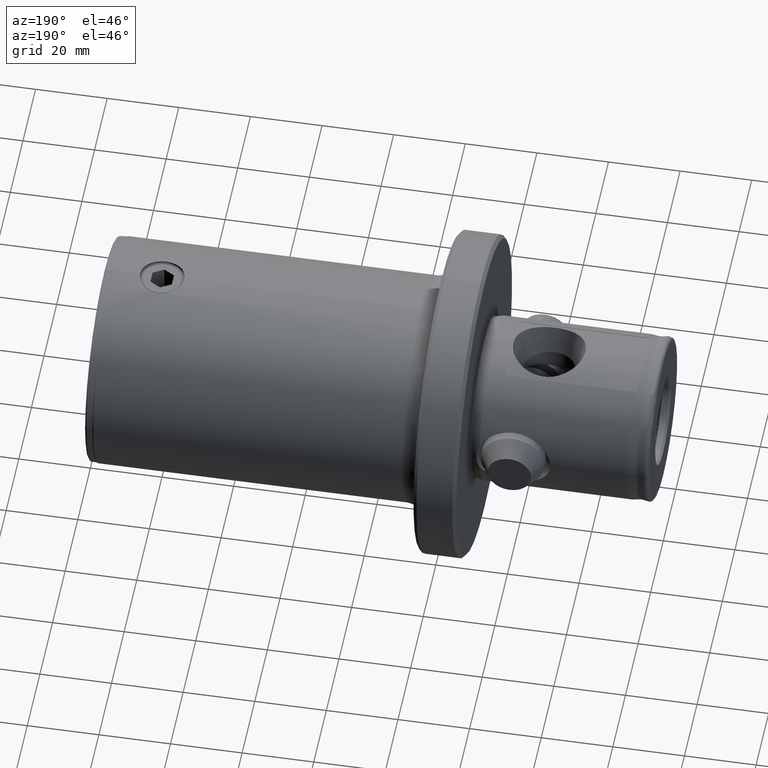
[diagram: clean part render]
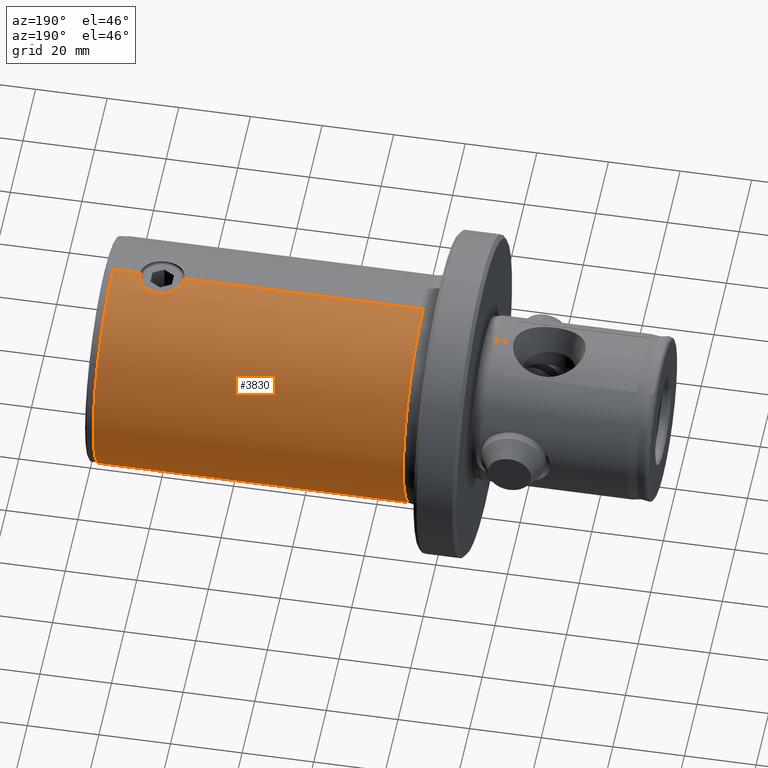
[diagram: same view with one face highlighted and labeled with its STEP entity id]
A machine part, auxiliary view. The second image highlights one B-rep face of the part: STEP entity #3830.
In plain terms, the highlighted cylindrical surface (partial cylindrical patch) has radius 31.635 mm, axis along (-1, -0, -0).
Its self-contained STEP definition (entity closure, byte-faithful):
#218 = CARTESIAN_POINT ( 'NONE',  ( 133.8389918804065500, 0.8018374299556667600, 31.62734728538004000 ) ) ;
#238 = CARTESIAN_POINT ( 'NONE',  ( 136.1976645814242500, 4.889058703006088400, 31.25573948646080100 ) ) ;
#249 = CARTESIAN_POINT ( 'NONE',  ( 142.6759038382167300, 5.527538662820200300, 31.14874049685562000 ) ) ;
#265 = DIRECTION ( 'NONE',  ( -1.000000000000000000, -0.0000000000000000000, -0.0000000000000000000 ) ) ;
#266 = CARTESIAN_POINT ( 'NONE',  ( 145.9408500149867800, 1.404697746439164800, 31.60442200919962000 ) ) ;
#271 = EDGE_CURVE ( 'NONE', #808, #4845, #1391, .T. ) ;
#514 = CARTESIAN_POINT ( 'NONE',  ( 155.9999999999999700, 0.0000000000000000000, 0.0000000000000000000 ) ) ;
#646 = CARTESIAN_POINT ( 'NONE',  ( 133.7999999999999800, 6.997006902693121700E-022, 31.63500000000000500 ) ) ;
#666 = CARTESIAN_POINT ( 'NONE',  ( 137.2160897759515900, 5.523712437825160700, 31.14942491159985100 ) ) ;
#683 = CARTESIAN_POINT ( 'NONE',  ( 143.5310414198409900, 5.003910732990695100, 31.23694782436792400 ) ) ;
#706 = CARTESIAN_POINT ( 'NONE',  ( 146.0999999999999700, 0.4072845302803347300, 31.63500000000000500 ) ) ;
#730 = CARTESIAN_POINT ( 'NONE',  ( 155.9999999999999700, 3.874170149102652900E-015, -31.63500000000000500 ) ) ;
#808 = VERTEX_POINT ( 'NONE', #1877 ) ;
#942 = DIRECTION ( 'NONE',  ( -1.000000000000000000, -0.0000000000000000000, -0.0000000000000000000 ) ) ;
#1044 = DIRECTION ( 'NONE',  ( 1.000000000000000000, 0.0000000000000000000, 0.0000000000000000000 ) ) ;
#1077 = CARTESIAN_POINT ( 'NONE',  ( 133.9974528427898700, 1.598294667138944900, 31.59711211062030900 ) ) ;
#1094 = AXIS2_PLACEMENT_3D ( 'NONE', #514, #942, #3045 ) ;
#1097 = CARTESIAN_POINT ( 'NONE',  ( 137.9675155725618900, 5.825193004398435000, 31.09411382168062900 ) ) ;
#1105 = CARTESIAN_POINT ( 'NONE',  ( 155.9999999999999700, 0.0000000000000000000, 31.63500000000000500 ) ) ;
#1114 = CARTESIAN_POINT ( 'NONE',  ( 144.0059705082675000, 4.627328162551321200, 31.29501158685445000 ) ) ;
#1331 = CARTESIAN_POINT ( 'NONE',  ( 66.99999999999998600, 0.0000000000000000000, 31.63500000000000500 ) ) ;
#1391 = CIRCLE ( 'NONE', #2025, 31.63500000000000500 ) ;
#1490 = CARTESIAN_POINT ( 'NONE',  ( 134.3454550415325200, 2.540023165402107700, 31.53341012735332800 ) ) ;
#1503 = CARTESIAN_POINT ( 'NONE',  ( 138.5478795857289400, 5.991390651068496000, 31.06248647552820700 ) ) ;
#1518 = CARTESIAN_POINT ( 'NONE',  ( 144.5787315534489900, 4.069047553508192500, 31.37351453063046900 ) ) ;
#1604 = CARTESIAN_POINT ( 'NONE',  ( 153.6343145750507200, 3.874170149102652900E-015, -31.63500000000000500 ) ) ;
#1816 = VERTEX_POINT ( 'NONE', #2936 ) ;
#1877 = CARTESIAN_POINT ( 'NONE',  ( 153.6343145750507200, 0.0000000000000000000, 31.63500000000000500 ) ) ;
#1928 = CARTESIAN_POINT ( 'NONE',  ( 134.6211916618714200, 3.076832738462256700, 31.48552316506233200 ) ) ;
#1943 = VERTEX_POINT ( 'NONE', #1331 ) ;
#1945 = CARTESIAN_POINT ( 'NONE',  ( 139.5407164932942700, 6.149788037869393000, 31.03148936379957200 ) ) ;
#1969 = CARTESIAN_POINT ( 'NONE',  ( 145.2850319074471500, 3.086160683484418900, 31.48592840713794400 ) ) ;
#2025 = AXIS2_PLACEMENT_3D ( 'NONE', #2810, #265, #3233 ) ;
#2045 = LINE ( 'NONE', #3280, #4022 ) ;
#2221 = ORIENTED_EDGE ( 'NONE', *, *, #3452, .T. ) ;
#2368 = CARTESIAN_POINT ( 'NONE',  ( 135.0617942562778900, 3.753686359106928300, 31.41331680595153800 ) ) ;
#2386 = CARTESIAN_POINT ( 'NONE',  ( 140.7528268151501400, 6.110590535687909300, 31.03933390662002300 ) ) ;
#2398 = CARTESIAN_POINT ( 'NONE',  ( 145.7049294718525200, 2.177931838018481800, 31.56048495932363500 ) ) ;
#2503 = EDGE_LOOP ( 'NONE', ( #4842, #5379, #2221, #3259, #3156, #5359 ) ) ;
#2776 = CARTESIAN_POINT ( 'NONE',  ( 135.8820532660823500, 4.629791676343304900, 31.29569019110654800 ) ) ;
#2791 = CARTESIAN_POINT ( 'NONE',  ( 141.9328501114427500, 5.835455495480037100, 31.09252606929352300 ) ) ;
#2810 = CARTESIAN_POINT ( 'NONE',  ( 153.6343145750507200, 0.0000000000000000000, 0.0000000000000000000 ) ) ;
#2811 = CARTESIAN_POINT ( 'NONE',  ( 145.8909337116278900, 1.602682063358000600, 31.59496892742645000 ) ) ;
#2830 = EDGE_CURVE ( 'NONE', #808, #4157, #2045, .T. ) ;
#2936 = CARTESIAN_POINT ( 'NONE',  ( 66.99999999999998600, 3.874170149102652900E-015, -31.63500000000000500 ) ) ;
#2948 = CIRCLE ( 'NONE', #4108, 31.63500000000000500 ) ;
#3045 = DIRECTION ( 'NONE',  ( 0.0000000000000000000, 0.0000000000000000000, 1.000000000000000000 ) ) ;
#3156 = ORIENTED_EDGE ( 'NONE', *, *, #3501, .T. ) ;
#3182 = CARTESIAN_POINT ( 'NONE',  ( 133.8000000000000100, 0.4017978743916890700, 31.63500000000001600 ) ) ;
#3200 = CARTESIAN_POINT ( 'NONE',  ( 136.8634717035596700, 5.334440848881079100, 31.18281396341153000 ) ) ;
#3223 = CARTESIAN_POINT ( 'NONE',  ( 143.0289722685458900, 5.338946606490228700, 31.18204775439135200 ) ) ;
#3233 = DIRECTION ( 'NONE',  ( 0.0000000000000000000, 0.0000000000000000000, 1.000000000000000000 ) ) ;
#3234 = CARTESIAN_POINT ( 'NONE',  ( 146.0599356634401100, 0.8093360441103240000, 31.62713969592305900 ) ) ;
#3239 = B_SPLINE_CURVE_WITH_KNOTS ( 'NONE', 3,
 ( #646, #3182, #218, #1077, #4018, #1490, #4449, #1928, #4870, #2368, #5292, #2776, #238, #3200, #666, #3616, #1097, #4036, #1503, #4469, #1945, #4884, #2386, #5313, #2791, #249, #3223, #683, #3632, #1114, #4056, #1518, #4480, #1969, #4900, #2398, #5328, #2811, #266, #3234, #706, #3647 ),
 .UNSPECIFIED., .F., .F.,
 ( 4, 2, 2, 2, 2, 2, 2, 2, 2, 2, 2, 2, 2, 2, 2, 2, 2, 2, 2, 2, 4 ),
 ( 0.01927365499852497200, 0.02047794902000048600, 0.02168224304147600000, 0.02228439005221375500, 0.02288653706295151400, 0.02409083108442702800, 0.02529512510590254200, 0.02649941912737805600, 0.02710156613811584900, 0.02770371314885364300, 0.02890800717032923600, 0.03011230119180482300, 0.03131659521328041000, 0.03252088923475600400, 0.03312303624549379300, 0.03372518325623159000, 0.03492947727770717700, 0.03613377129918277100, 0.03673591830992056100, 0.03733806532065835100, 0.03854235934213394400 ),
 .UNSPECIFIED. ) ;
#3259 = ORIENTED_EDGE ( 'NONE', *, *, #5046, .F. ) ;
#3280 = CARTESIAN_POINT ( 'NONE',  ( 155.9999999999999700, 0.0000000000000000000, 31.63500000000000500 ) ) ;
#3452 = EDGE_CURVE ( 'NONE', #1816, #1943, #2948, .T. ) ;
#3501 = EDGE_CURVE ( 'NONE', #4850, #4157, #3239, .T. ) ;
#3562 = EDGE_CURVE ( 'NONE', #4845, #1816, #3670, .T. ) ;
#3564 = CARTESIAN_POINT ( 'NONE',  ( 66.99999999999998600, 0.0000000000000000000, 0.0000000000000000000 ) ) ;
#3616 = CARTESIAN_POINT ( 'NONE',  ( 137.7755685248643800, 5.756312952939122600, 31.10698149600215600 ) ) ;
#3632 = CARTESIAN_POINT ( 'NONE',  ( 143.6945309675980700, 4.882781023205473600, 31.25617324025320400 ) ) ;
#3647 = CARTESIAN_POINT ( 'NONE',  ( 146.0999999999999700, 8.458392935963226800E-016, 31.63500000000000500 ) ) ;
#3670 = LINE ( 'NONE', #730, #4794 ) ;
#3681 = DIRECTION ( 'NONE',  ( -1.000000000000000000, -0.0000000000000000000, -0.0000000000000000000 ) ) ;
#3732 = CYLINDRICAL_SURFACE ( 'NONE', #1094, 31.63500000000000500 ) ;
#3830 = ADVANCED_FACE ( 'NONE', ( #4007 ), #3732, .T. ) ;
#3986 = DIRECTION ( 'NONE',  ( 0.0000000000000000000, 0.0000000000000000000, 1.000000000000000000 ) ) ;
#4007 = FACE_OUTER_BOUND ( 'NONE', #2503, .T. ) ;
#4018 = CARTESIAN_POINT ( 'NONE',  ( 134.1152977914077300, 1.984771429182237100, 31.57485859250199700 ) ) ;
#4022 = VECTOR ( 'NONE', #5398, 1000.000000000000000 ) ;
#4036 = CARTESIAN_POINT ( 'NONE',  ( 138.3531495961631200, 5.942489952140714800, 31.07191016115406200 ) ) ;
#4051 = VECTOR ( 'NONE', #4779, 1000.000000000000000 ) ;
#4056 = CARTESIAN_POINT ( 'NONE',  ( 144.1544521465439200, 4.492775655880669700, 31.31466950416409700 ) ) ;
#4108 = AXIS2_PLACEMENT_3D ( 'NONE', #3564, #1044, #3986 ) ;
#4111 = CARTESIAN_POINT ( 'NONE',  ( 146.0999999999999700, 8.458392935963226800E-016, 31.63500000000000500 ) ) ;
#4157 = VERTEX_POINT ( 'NONE', #4111 ) ;
#4449 = CARTESIAN_POINT ( 'NONE',  ( 134.4312257094841200, 2.721438651765397700, 31.51823028570652200 ) ) ;
#4469 = CARTESIAN_POINT ( 'NONE',  ( 139.1377353391687800, 6.109299508132775900, 31.03958917937318100 ) ) ;
#4480 = CARTESIAN_POINT ( 'NONE',  ( 144.8336008448516200, 3.759972873030994000, 31.41258791341095600 ) ) ;
#4779 = DIRECTION ( 'NONE',  ( -1.000000000000000000, -0.0000000000000000000, -0.0000000000000000000 ) ) ;
#4794 = VECTOR ( 'NONE', #3681, 1000.000000000000000 ) ;
#4842 = ORIENTED_EDGE ( 'NONE', *, *, #271, .T. ) ;
#4845 = VERTEX_POINT ( 'NONE', #1604 ) ;
#4850 = VERTEX_POINT ( 'NONE', #4978 ) ;
#4870 = CARTESIAN_POINT ( 'NONE',  ( 134.7259408094240300, 3.251501152119596700, 31.46790932865051700 ) ) ;
#4884 = CARTESIAN_POINT ( 'NONE',  ( 140.3528885317360600, 6.150210299703447300, 31.03140567740606700 ) ) ;
#4900 = CARTESIAN_POINT ( 'NONE',  ( 145.4741222069395400, 2.732576643207158100, 31.51894258575291400 ) ) ;
#4978 = CARTESIAN_POINT ( 'NONE',  ( 133.7999999999999800, 6.997006902693121700E-022, 31.63500000000000500 ) ) ;
#5031 = LINE ( 'NONE', #1105, #4051 ) ;
#5046 = EDGE_CURVE ( 'NONE', #4850, #1943, #5031, .T. ) ;
#5292 = CARTESIAN_POINT ( 'NONE',  ( 135.3155260374234700, 4.062611559887219700, 31.37435868376484300 ) ) ;
#5313 = CARTESIAN_POINT ( 'NONE',  ( 141.5408296122616000, 5.954251316052610000, 31.06970320628724700 ) ) ;
#5328 = CARTESIAN_POINT ( 'NONE',  ( 145.7729939371148200, 1.988975809428063600, 31.57300471210750100 ) ) ;
#5359 = ORIENTED_EDGE ( 'NONE', *, *, #2830, .F. ) ;
#5379 = ORIENTED_EDGE ( 'NONE', *, *, #3562, .T. ) ;
#5398 = DIRECTION ( 'NONE',  ( -1.000000000000000000, -0.0000000000000000000, -0.0000000000000000000 ) ) ;